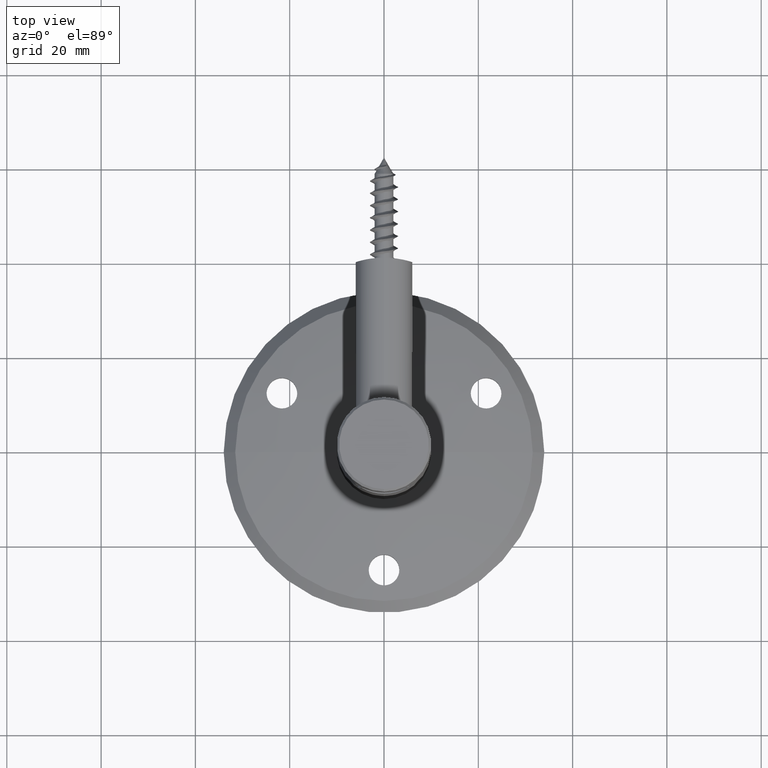
[diagram: clean part render]
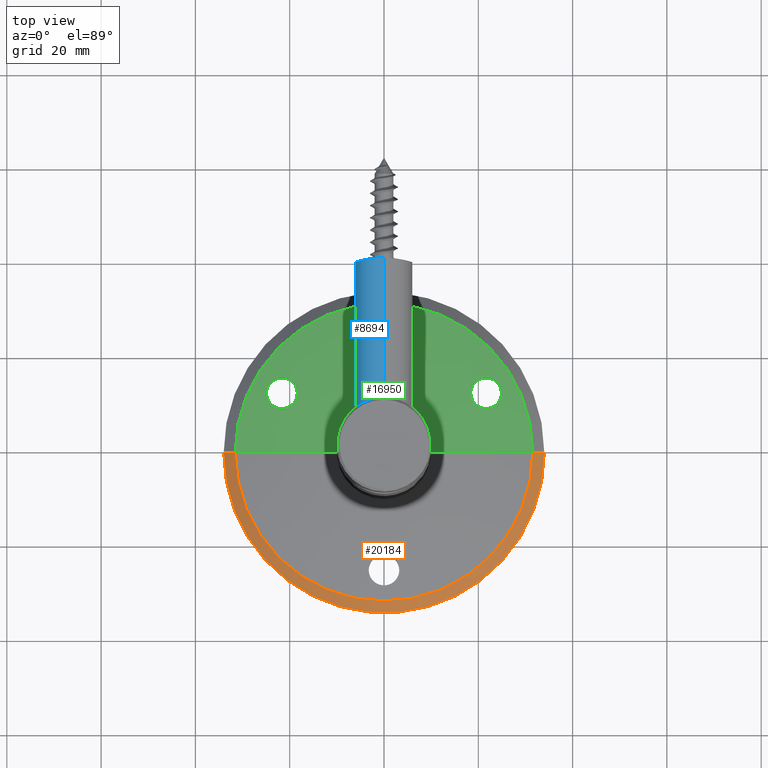
[diagram: same view with three faces highlighted in distinct colors, each labeled with its STEP entity id]
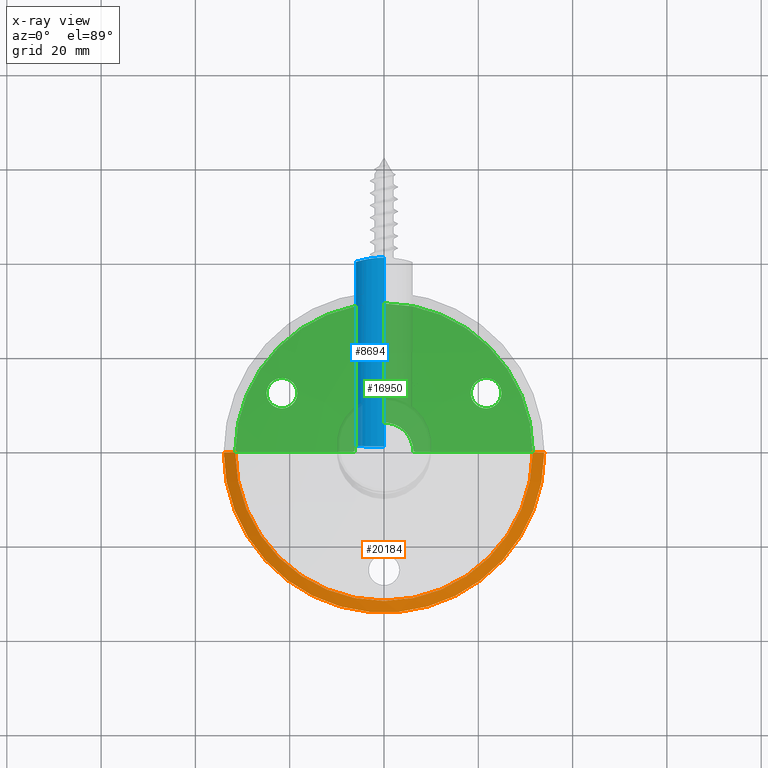
[diagram: x-ray of the same camera — body ghosted, the three highlighted faces saturated]
A machine part, top view with three faces highlighted in distinct colors.
The next image is the same camera in x-ray (body ghosted, the three faces saturated) — at least one of them is partly hidden behind the body in this view.
Their STEP definitions:

[orange] entity #20184 — the highlighted conical surface has half-angle 44.713 deg.
#492 = DIRECTION ( 'NONE',  ( -1.000000000000000000, 0.000000000000000000, 0.000000000000000000 ) ) ;
#2248 = DIRECTION ( 'NONE',  ( -1.873600393855974325E-19, 1.000000000000000000, -0.000000000000000000 ) ) ;
#2370 = VERTEX_POINT ( 'NONE', #25033 ) ;
#3230 = EDGE_LOOP ( 'NONE', ( #19136, #8001, #25710, #14365 ) ) ;
#3300 = DIRECTION ( 'NONE',  ( -0.7035575773262883192, -0.7106382591633831902, 8.616095350885053837E-17 ) ) ;
#3693 = CARTESIAN_POINT ( 'NONE',  ( 31.55000000000005045, 1.323225072109828426, 0.000000000000000000 ) ) ;
#4082 = DIRECTION ( 'NONE',  ( 1.873600393855974325E-19, -1.000000000000000000, 0.000000000000000000 ) ) ;
#4614 = EDGE_CURVE ( 'NONE', #11810, #5712, #24843, .T. ) ;
#5712 = VERTEX_POINT ( 'NONE', #6509 ) ;
#6390 = AXIS2_PLACEMENT_3D ( 'NONE', #24197, #4082, #13332 ) ;
#6509 = CARTESIAN_POINT ( 'NONE',  ( 34.00000000000002842, -1.151432000829118785, 4.163799117101004504E-15 ) ) ;
#7300 = DIRECTION ( 'NONE',  ( -1.873600393855974325E-19, 1.000000000000000000, -0.000000000000000000 ) ) ;
#7610 = CARTESIAN_POINT ( 'NONE',  ( -31.55000000000002203, 1.323225072109828426, -3.863760651309905284E-15 ) ) ;
#8001 = ORIENTED_EDGE ( 'NONE', *, *, #24510, .T. ) ;
#8343 = EDGE_CURVE ( 'NONE', #2370, #5712, #21969, .T. ) ;
#9549 = CARTESIAN_POINT ( 'NONE',  ( -2.479195016265073111E-19, 1.323225072109827538, 0.000000000000000000 ) ) ;
#9675 = AXIS2_PLACEMENT_3D ( 'NONE', #9549, #7300, #492 ) ;
#10636 = AXIS2_PLACEMENT_3D ( 'NONE', #18158, #2248, #22563 ) ;
#11081 = FACE_OUTER_BOUND ( 'NONE', #3230, .T. ) ;
#11810 = VERTEX_POINT ( 'NONE', #3693 ) ;
#11869 = VECTOR ( 'NONE', #28020, 1000.000000000000000 ) ;
#12439 = CARTESIAN_POINT ( 'NONE',  ( -34.00000000000002842, -1.151432000829118785, 4.163799117101004504E-15 ) ) ;
#12742 = VECTOR ( 'NONE', #3300, 1000.000000000000000 ) ;
#13332 = DIRECTION ( 'NONE',  ( 1.000000000000000000, 0.000000000000000000, 0.000000000000000000 ) ) ;
#14365 = ORIENTED_EDGE ( 'NONE', *, *, #4614, .F. ) ;
#18106 = CONICAL_SURFACE ( 'NONE', #6390, 34.00000000000002842, 0.7803913443363523772 ) ;
#18158 = CARTESIAN_POINT ( 'NONE',  ( 2.157323450251809556E-19, -1.151432000829118785, 0.000000000000000000 ) ) ;
#18734 = LINE ( 'NONE', #12439, #12742 ) ;
#19134 = CARTESIAN_POINT ( 'NONE',  ( 34.00000000000002842, -1.151432000829118785, 0.000000000000000000 ) ) ;
#19136 = ORIENTED_EDGE ( 'NONE', *, *, #23746, .F. ) ;
#20184 = ADVANCED_FACE ( 'NONE', ( #11081 ), #18106, .T. ) ;
#20458 = VERTEX_POINT ( 'NONE', #7610 ) ;
#21969 = CIRCLE ( 'NONE', #10636, 34.00000000000002842 ) ;
#22563 = DIRECTION ( 'NONE',  ( -1.000000000000000000, 0.000000000000000000, 0.000000000000000000 ) ) ;
#23746 = EDGE_CURVE ( 'NONE', #20458, #11810, #25729, .T. ) ;
#24197 = CARTESIAN_POINT ( 'NONE',  ( 2.157323450251809556E-19, -1.151432000829118785, 0.000000000000000000 ) ) ;
#24510 = EDGE_CURVE ( 'NONE', #20458, #2370, #18734, .T. ) ;
#24843 = LINE ( 'NONE', #19134, #11869 ) ;
#25033 = CARTESIAN_POINT ( 'NONE',  ( -34.00000000000002842, -1.151432000829118785, 0.000000000000000000 ) ) ;
#25710 = ORIENTED_EDGE ( 'NONE', *, *, #8343, .T. ) ;
#25729 = CIRCLE ( 'NONE', #9675, 31.55000000000002913 ) ;
#28020 = DIRECTION ( 'NONE',  ( 0.7035575773262883192, -0.7106382591633831902, 0.000000000000000000 ) ) ;

[blue] entity #8694 — the highlighted cylindrical surface (edge-blend (fillet) strip) has radius 6 mm, axis along (-0, -1, -0).
#500 = CARTESIAN_POINT ( 'NONE',  ( 0.000000000000000000, 0.000000000000000000, 0.000000000000000000 ) ) ;
#546 = CARTESIAN_POINT ( 'NONE',  ( -3.964276376799458212, 39.48570432169955780, 4.520804803982510833 ) ) ;
#651 = CARTESIAN_POINT ( 'NONE',  ( -5.950782786971636540, 39.01388517066094863, 0.7920059584994796342 ) ) ;
#747 = CARTESIAN_POINT ( 'NONE',  ( -5.807638100490195576, 39.05376611899017547, -1.557673210457313440 ) ) ;
#940 = CARTESIAN_POINT ( 'NONE',  ( -5.206236184183812732, 39.21191835892614819, -3.008410149858220084 ) ) ;
#1627 = DIRECTION ( 'NONE',  ( 0.000000000000000000, 0.000000000000000000, -1.000000000000000000 ) ) ;
#2827 = CARTESIAN_POINT ( 'NONE',  ( -3.659761668993716910, 39.54057707642264319, -4.758622854168131688 ) ) ;
#2920 = CARTESIAN_POINT ( 'NONE',  ( -4.877444316915770628, 39.29023204928930113, 3.499777847767239436 ) ) ;
#3014 = VERTEX_POINT ( 'NONE', #5340 ) ;
#3106 = CARTESIAN_POINT ( 'NONE',  ( -5.806108110380638010, 39.05418668130603521, 1.562930708838027094 ) ) ;
#3201 = CARTESIAN_POINT ( 'NONE',  ( -0.7857620104761188218, 39.85531621128593827, 5.961577234803183245 ) ) ;
#3761 = EDGE_CURVE ( 'NONE', #3014, #14916, #7322, .T. ) ;
#5140 = EDGE_LOOP ( 'NONE', ( #27850, #23024, #19605, #22399 ) ) ;
#5185 = CARTESIAN_POINT ( 'NONE',  ( -3.663581196725830047, 39.54185171160022350, 4.767704155232880936 ) ) ;
#5287 = CARTESIAN_POINT ( 'NONE',  ( -5.387574997671332966, 39.16563756549380315, 2.670399795066904058 ) ) ;
#5340 = CARTESIAN_POINT ( 'NONE',  ( 0.000000000000000000, 0.000000000000000000, -6.000000000000000888 ) ) ;
#5431 = CARTESIAN_POINT ( 'NONE',  ( 7.347880794884120722E-16, 0.000000000000000000, 6.000000000000000888 ) ) ;
#5476 = CARTESIAN_POINT ( 'NONE',  ( -3.500786555539173950, 39.56823632701032523, -4.876773007445482477 ) ) ;
#5519 = B_SPLINE_CURVE_WITH_KNOTS ( 'NONE', 3,
 ( #18740, #25574, #3201, #27431, #27718, #7649, #27624, #5185, #546, #21141, #7357, #9898, #2920, #23042, #5287, #12136, #3106, #9801, #651, #16383, #12040, #14036, #14226, #747, #27815, #14429, #940, #20865, #7454, #16672, #18931, #2827, #5476, #18547, #23147, #25185, #11749, #25379, #7746, #16487 ),
 .UNSPECIFIED., .F., .F.,
 ( 4, 2, 2, 2, 2, 2, 2, 2, 2, 2, 2, 2, 2, 2, 2, 2, 2, 2, 2, 4 ),
 ( 0.01885530596887355012, 0.02003343805342193765, 0.02121157013797032517, 0.02238970222251870923, 0.02356783430706709676, 0.02415690034934129052, 0.02474596639161548081, 0.02592409847616387181, 0.02710223056071225933, 0.02769129660298644963, 0.02828036264526064686, 0.02945849472980903092, 0.03063662681435741844, 0.03181475889890580250, 0.03299289098345419002, 0.03358195702572838032, 0.03417102306800257061, 0.03534915515255095120, 0.03652728723709933178, 0.03770541932164770543 ),
 .UNSPECIFIED. ) ;
#6065 = CARTESIAN_POINT ( 'NONE',  ( 0.000000000000000000, 40.00000000000000000, 0.000000000000000000 ) ) ;
#6254 = DIRECTION ( 'NONE',  ( -0.000000000000000000, -1.000000000000000000, -0.000000000000000000 ) ) ;
#7205 = DIRECTION ( 'NONE',  ( 0.000000000000000000, 1.000000000000000000, 0.000000000000000000 ) ) ;
#7322 = CIRCLE ( 'NONE', #17584, 6.000000000000000888 ) ;
#7357 = CARTESIAN_POINT ( 'NONE',  ( -4.512491946779505270, 39.37242490906735526, 3.959268904647315512 ) ) ;
#7454 = CARTESIAN_POINT ( 'NONE',  ( -4.519030231717185764, 39.37239402637399621, -3.966069421012515583 ) ) ;
#7649 = CARTESIAN_POINT ( 'NONE',  ( -2.662935658242311376, 39.69628743181432640, 5.390914844807952022 ) ) ;
#7746 = CARTESIAN_POINT ( 'NONE',  ( -0.3985343531787722271, 39.86677595657786810, -6.000000000000001776 ) ) ;
#8694 = ADVANCED_FACE ( 'NONE', ( #18116 ), #16015, .T. ) ;
#9151 = LINE ( 'NONE', #14993, #25978 ) ;
#9337 = CARTESIAN_POINT ( 'NONE',  ( 7.347880794884120722E-16, 40.00000000000000000, 6.000000000000000888 ) ) ;
#9704 = AXIS2_PLACEMENT_3D ( 'NONE', #6065, #6254, #1627 ) ;
#9801 = CARTESIAN_POINT ( 'NONE',  ( -5.921602644399784232, 39.02208673504235747, 0.9864243860285004661 ) ) ;
#9898 = CARTESIAN_POINT ( 'NONE',  ( -4.761199180085127658, 39.31712859228571944, 3.656415758172712138 ) ) ;
#10640 = DIRECTION ( 'NONE',  ( -0.000000000000000000, -1.000000000000000000, -0.000000000000000000 ) ) ;
#10892 = VECTOR ( 'NONE', #11577, 1000.000000000000000 ) ;
#11211 = CARTESIAN_POINT ( 'NONE',  ( 7.348785364234270165E-16, 39.86677595657787521, 6.000000000000000888 ) ) ;
#11577 = DIRECTION ( 'NONE',  ( -0.000000000000000000, -1.000000000000000000, -0.000000000000000000 ) ) ;
#11749 = CARTESIAN_POINT ( 'NONE',  ( -1.563029231404520214, 39.81043210133497467, -5.806202220854063789 ) ) ;
#12040 = CARTESIAN_POINT ( 'NONE',  ( -5.999970890992127437, 39.00000823839837949, 0.1986379970142011508 ) ) ;
#12136 = CARTESIAN_POINT ( 'NONE',  ( -5.691954975217570656, 39.08562598345534411, 1.938723286372394883 ) ) ;
#13450 = EDGE_CURVE ( 'NONE', #15304, #15050, #5519, .T. ) ;
#14036 = CARTESIAN_POINT ( 'NONE',  ( -6.000058023881838842, 38.99998357814681782, -0.3946323561158853188 ) ) ;
#14226 = CARTESIAN_POINT ( 'NONE',  ( -5.961386802456495992, 39.01102457284437719, -0.7854129667501479339 ) ) ;
#14429 = CARTESIAN_POINT ( 'NONE',  ( -5.390535398939861444, 39.16486600748005031, -2.663726017055905171 ) ) ;
#14916 = VERTEX_POINT ( 'NONE', #5431 ) ;
#14993 = CARTESIAN_POINT ( 'NONE',  ( 0.000000000000000000, 40.00000000000000000, -6.000000000000000888 ) ) ;
#15050 = VERTEX_POINT ( 'NONE', #26291 ) ;
#15304 = VERTEX_POINT ( 'NONE', #11211 ) ;
#16015 = CYLINDRICAL_SURFACE ( 'NONE', #9704, 6.000000000000000888 ) ;
#16383 = CARTESIAN_POINT ( 'NONE',  ( -5.990013146693849322, 39.00283265901343555, 0.3985369725024903165 ) ) ;
#16487 = CARTESIAN_POINT ( 'NONE',  ( 4.282583449921128537E-16, 39.86677595657787521, -6.000000000000000888 ) ) ;
#16672 = CARTESIAN_POINT ( 'NONE',  ( -4.106542281007299344, 39.45667399872763781, -4.378829263189588872 ) ) ;
#17584 = AXIS2_PLACEMENT_3D ( 'NONE', #500, #7205, #27572 ) ;
#18116 = FACE_OUTER_BOUND ( 'NONE', #5140, .T. ) ;
#18547 = CARTESIAN_POINT ( 'NONE',  ( -3.012141485592890966, 39.64739288236551573, -5.203910987434446689 ) ) ;
#18740 = CARTESIAN_POINT ( 'NONE',  ( 7.348785364234270165E-16, 39.86677595657787521, 6.000000000000000888 ) ) ;
#18931 = CARTESIAN_POINT ( 'NONE',  ( -3.962259874287239025, 39.48485087254294257, -4.509860710782562343 ) ) ;
#19605 = ORIENTED_EDGE ( 'NONE', *, *, #27934, .T. ) ;
#20865 = CARTESIAN_POINT ( 'NONE',  ( -4.767826730278489578, 39.31634975640431406, -3.663776071939537360 ) ) ;
#21141 = CARTESIAN_POINT ( 'NONE',  ( -4.379526882826519696, 39.40091599897961316, 4.105853760113749473 ) ) ;
#22399 = ORIENTED_EDGE ( 'NONE', *, *, #3761, .T. ) ;
#23024 = ORIENTED_EDGE ( 'NONE', *, *, #13450, .T. ) ;
#23042 = CARTESIAN_POINT ( 'NONE',  ( -5.202397460826470699, 39.21284511678085494, 3.014414180720894176 ) ) ;
#23147 = CARTESIAN_POINT ( 'NONE',  ( -2.668671955346761937, 39.69554027743483005, -5.388084655582786375 ) ) ;
#25185 = CARTESIAN_POINT ( 'NONE',  ( -1.945894607542806742, 39.77703341008690074, -5.689179241095924766 ) ) ;
#25379 = CARTESIAN_POINT ( 'NONE',  ( -0.7908140422925846735, 39.85505454503419287, -5.960675948094186438 ) ) ;
#25574 = CARTESIAN_POINT ( 'NONE',  ( -0.3927368600506273011, 39.86677595657788231, 6.000000000000001776 ) ) ;
#25949 = LINE ( 'NONE', #9337, #10892 ) ;
#25978 = VECTOR ( 'NONE', #10640, 1000.000000000000000 ) ;
#26291 = CARTESIAN_POINT ( 'NONE',  ( 4.282583449921128537E-16, 39.86677595657787521, -6.000000000000000888 ) ) ;
#27431 = CARTESIAN_POINT ( 'NONE',  ( -1.564912541669909674, 39.81035341677710448, 5.805934360682633688 ) ) ;
#27572 = DIRECTION ( 'NONE',  ( 0.000000000000000000, 0.000000000000000000, 1.000000000000000000 ) ) ;
#27624 = CARTESIAN_POINT ( 'NONE',  ( -3.013945904030062906, 39.64711374446569181, 5.202783887920806372 ) ) ;
#27718 = CARTESIAN_POINT ( 'NONE',  ( -1.940025159554571665, 39.77759317860548549, 5.691176641451610507 ) ) ;
#27815 = CARTESIAN_POINT ( 'NONE',  ( -5.691000992974683648, 39.08587007480336695, -1.940571018830644423 ) ) ;
#27850 = ORIENTED_EDGE ( 'NONE', *, *, #28905, .F. ) ;
#27934 = EDGE_CURVE ( 'NONE', #15050, #3014, #9151, .T. ) ;
#28905 = EDGE_CURVE ( 'NONE', #15304, #14916, #25949, .T. ) ;

[green] entity #16950 — the highlighted spherical surface has radius 137.202 mm.
#44 = CIRCLE ( 'NONE', #20235, 6.249999999999849898 ) ;
#55 = CARTESIAN_POINT ( 'NONE',  ( 18.42130358774675258, 3.220613773560843107, -12.07504099205186421 ) ) ;
#162 = CARTESIAN_POINT ( 'NONE',  ( -19.68674065705360832, 3.218910011225227574, -9.901703773210174475 ) ) ;
#326 = CARTESIAN_POINT ( 'NONE',  ( 19.68678848478469234, 3.218904070390783634, -9.901685266453631229 ) ) ;
#440 = CARTESIAN_POINT ( 'NONE',  ( -19.66187133969511081, 2.744165668034393768, -15.07903309589202223 ) ) ;
#482 = CARTESIAN_POINT ( 'NONE',  ( 24.56752579193426556, 2.060011947045868208, -13.94931790273381544 ) ) ;
#582 = CARTESIAN_POINT ( 'NONE',  ( 24.08846648249511091, 2.071091219748712575, -14.66006953737124618 ) ) ;
#775 = CARTESIAN_POINT ( 'NONE',  ( 21.20630468683646441, 2.434163380145796030, -15.74696489451178572 ) ) ;
#823 = CARTESIAN_POINT ( 'NONE',  ( -23.62795496054672739, 2.102967424068519442, -15.11526273863914405 ) ) ;
#1085 = EDGE_CURVE ( 'NONE', #6973, #2155, #17266, .T. ) ;
#1778 = AXIS2_PLACEMENT_3D ( 'NONE', #27768, #10141, #5336 ) ;
#1933 = CARTESIAN_POINT ( 'NONE',  ( -24.90063509461093716, 2.141205001286026199, -12.49999999999999289 ) ) ;
#2155 = VERTEX_POINT ( 'NONE', #10743 ) ;
#2213 = CARTESIAN_POINT ( 'NONE',  ( 23.64052137450945423, 2.583459584088036554, -9.921709560958717589 ) ) ;
#2235 = CARTESIAN_POINT ( 'NONE',  ( -24.57192641662134491, 2.328026766935543446, -11.06012530453716280 ) ) ;
#2312 = CARTESIAN_POINT ( 'NONE',  ( 18.40063509461100111, 3.184687488071022532, -12.50000000000000888 ) ) ;
#2433 = CARTESIAN_POINT ( 'NONE',  ( -21.24966479377535578, 3.027404161120517134, -9.267905812885500083 ) ) ;
#2547 = CIRCLE ( 'NONE', #24593, 137.2019220182881440 ) ;
#2592 = CARTESIAN_POINT ( 'NONE',  ( 24.90063509461100111, 2.161032941992547141, -12.28690019545040890 ) ) ;
#2636 = CARTESIAN_POINT ( 'NONE',  ( -18.40063509461093005, 3.184687488071056727, -12.49999999999999822 ) ) ;
#2705 = CARTESIAN_POINT ( 'NONE',  ( -22.46584614086420117, 2.240160594145616635, -15.65330219786562438 ) ) ;
#2758 = CARTESIAN_POINT ( 'NONE',  ( 24.79524798743407388, 2.079251724942865920, -13.34822851572565838 ) ) ;
#2811 = CARTESIAN_POINT ( 'NONE',  ( -24.46438077859136584, 2.058854433994938837, -14.14040230117570474 ) ) ;
#2906 = CARTESIAN_POINT ( 'NONE',  ( -24.79515248673736494, 2.079222603710677131, -13.34870679242762215 ) ) ;
#2950 = CARTESIAN_POINT ( 'NONE',  ( 22.05240838295251393, 2.299402638675524191, -15.73208695246785993 ) ) ;
#3004 = CARTESIAN_POINT ( 'NONE',  ( -18.83113655395683139, 2.965163677498570127, -14.13011756481651204 ) ) ;
#3042 = CARTESIAN_POINT ( 'NONE',  ( 23.06808943147917645, 2.163696764786613436, -15.43233655172149810 ) ) ;
#3083 = DIRECTION ( 'NONE',  ( 1.000000000000000000, 0.000000000000000000, 0.000000000000000000 ) ) ;
#3090 = CARTESIAN_POINT ( 'NONE',  ( -24.90063509461095137, 2.121408997394307328, -12.71275656522473341 ) ) ;
#3139 = CARTESIAN_POINT ( 'NONE',  ( 24.73309989053668900, 2.070281293100495468, -13.55222835220999400 ) ) ;
#3693 = CARTESIAN_POINT ( 'NONE',  ( 31.55000000000005045, 1.323225072109828426, 0.000000000000000000 ) ) ;
#3921 = EDGE_LOOP ( 'NONE', ( #5993, #19917 ) ) ;
#4130 = DIRECTION ( 'NONE',  ( -1.000000000000000000, 0.000000000000000000, 0.000000000000000000 ) ) ;
#4484 = CARTESIAN_POINT ( 'NONE',  ( -18.40063509461093005, 3.184687488071056727, -12.49999999999999822 ) ) ;
#4622 = B_SPLINE_CURVE_WITH_KNOTS ( 'NONE', 3,
 ( #2312, #11252, #55, #11615, #22819, #24955, #22619, #20445, #20262, #22722, #326, #9373, #18121, #24866, #6837, #25050, #27016, #27299, #11527, #27110, #16066, #15698, #13709, #2213, #7029, #9004, #18227, #13611, #4659, #22525, #2592, #7124 ),
 .UNSPECIFIED., .F., .F.,
 ( 4, 2, 2, 2, 2, 2, 2, 2, 2, 2, 2, 2, 2, 2, 2, 4 ),
 ( 0.002674754707660566538, 0.003315336928196353436, 0.003955919148732139901, 0.004596501369267926365, 0.005237083589803713697, 0.005877665810339500162, 0.006518248030875287494, 0.007158830251411073958, 0.007799412471946860423, 0.008439994692482646887, 0.009080576913018433352, 0.009721159133554221551, 0.01036174135409000802, 0.01164290579516157748, 0.01228348801569736047, 0.01292407023623314347 ),
 .UNSPECIFIED. ) ;
#4659 = CARTESIAN_POINT ( 'NONE',  ( 24.79659854990288537, 2.236397164296403783, -11.65678851343565192 ) ) ;
#4681 = CARTESIAN_POINT ( 'NONE',  ( -18.40063509461093361, 3.204365516194339847, -12.28686867924922232 ) ) ;
#4966 = CARTESIAN_POINT ( 'NONE',  ( -22.67206716336210093, 2.212591729818495168, -15.59258729427728696 ) ) ;
#5017 = CARTESIAN_POINT ( 'NONE',  ( 18.42188647295795434, 3.141781288821329454, -12.92785887088139596 ) ) ;
#5071 = CARTESIAN_POINT ( 'NONE',  ( -19.49946751269711953, 2.782590263768787153, -14.94544333274493475 ) ) ;
#5220 = CARTESIAN_POINT ( 'NONE',  ( 20.00753297968704558, 2.664960523333355535, -15.33533113202369513 ) ) ;
#5277 = VERTEX_POINT ( 'NONE', #9179 ) ;
#5315 = CARTESIAN_POINT ( 'NONE',  ( 19.64658146472042333, 2.745300213471416839, -15.09343697874318302 ) ) ;
#5336 = DIRECTION ( 'NONE',  ( -1.000000000000000000, 0.000000000000000000, -1.224646799147353207E-16 ) ) ;
#5575 = DIRECTION ( 'NONE',  ( 0.000000000000000000, 0.000000000000000000, 1.000000000000000000 ) ) ;
#5577 = EDGE_CURVE ( 'NONE', #20458, #15756, #25541, .T. ) ;
#5747 = EDGE_CURVE ( 'NONE', #11810, #20458, #12550, .T. ) ;
#5993 = ORIENTED_EDGE ( 'NONE', *, *, #1085, .F. ) ;
#6072 = EDGE_LOOP ( 'NONE', ( #6404, #17427, #6267, #17259 ) ) ;
#6267 = ORIENTED_EDGE ( 'NONE', *, *, #27432, .F. ) ;
#6404 = ORIENTED_EDGE ( 'NONE', *, *, #5747, .T. ) ;
#6666 = CARTESIAN_POINT ( 'NONE',  ( -21.46035830181032367, 2.995459029642072224, -9.248538902208535362 ) ) ;
#6837 = CARTESIAN_POINT ( 'NONE',  ( 20.83437806431916073, 3.086562758790535543, -9.347065408173568457 ) ) ;
#6853 = CARTESIAN_POINT ( 'NONE',  ( -18.40063509461093361, 3.165023080334445016, -12.71298379931260669 ) ) ;
#6973 = VERTEX_POINT ( 'NONE', #9556 ) ;
#7029 = CARTESIAN_POINT ( 'NONE',  ( 23.80523129255123393, 2.544376125982338532, -10.05778832055524674 ) ) ;
#7124 = CARTESIAN_POINT ( 'NONE',  ( 24.90063509461099756, 2.141205001286021758, -12.50000000000000711 ) ) ;
#7239 = CARTESIAN_POINT ( 'NONE',  ( -24.08913364948105951, 2.071047275627936113, -14.65938603750719338 ) ) ;
#7281 = B_SPLINE_CURVE_WITH_KNOTS ( 'NONE', 3,
 ( #9386, #6853, #7341, #9783, #22937, #16174, #3004, #18727, #23031, #5071, #440, #9492, #13915, #11735, #27313, #11835, #16469, #27415, #23312, #2705, #4966, #9687, #823, #7239, #9589, #2811, #20850, #27513, #2906, #14020, #3090, #11933 ),
 .UNSPECIFIED., .F., .F.,
 ( 4, 2, 2, 2, 2, 2, 2, 2, 2, 2, 2, 2, 2, 2, 2, 4 ),
 ( 0.01280076503477827789, 0.01344107767929983953, 0.01408139032382140290, 0.01472170296834296455, 0.01536201561286452792, 0.01600232825738609130, 0.01664264090190765294, 0.01728295354642921458, 0.01792326619095077622, 0.01856357883547234133, 0.01920389147999390297, 0.02048451676903702973, 0.02112482941355859484, 0.02176514205808015648, 0.02240545470260171812, 0.02304576734712328323 ),
 .UNSPECIFIED. ) ;
#7341 = CARTESIAN_POINT ( 'NONE',  ( -18.42205885368258933, 3.141658454481170093, -12.92889015947616471 ) ) ;
#7388 = CARTESIAN_POINT ( 'NONE',  ( 21.83862506368915035, 2.332017626427016932, -15.75139776186985152 ) ) ;
#7485 = CARTESIAN_POINT ( 'NONE',  ( 23.26031033781880453, 2.142110865524465169, -15.33140269317970983 ) ) ;
#7583 = CARTESIAN_POINT ( 'NONE',  ( 19.19800545756231003, 2.858937687910312775, -14.64289977414203037 ) ) ;
#7610 = CARTESIAN_POINT ( 'NONE',  ( -31.55000000000002203, 1.323225072109828426, -3.863760651309905284E-15 ) ) ;
#8926 = CARTESIAN_POINT ( 'NONE',  ( -20.83425279380761452, 3.086578895153181623, -9.347107684130872229 ) ) ;
#9004 = CARTESIAN_POINT ( 'NONE',  ( 24.25018901483302614, 2.431399066450202096, -10.50461781369131664 ) ) ;
#9027 = CARTESIAN_POINT ( 'NONE',  ( -20.23140713941404201, 3.162580020688157578, -9.568458194313562259 ) ) ;
#9119 = CARTESIAN_POINT ( 'NONE',  ( -20.04329314670211204, 3.183542244344759631, -9.667249303854726250 ) ) ;
#9179 = CARTESIAN_POINT ( 'NONE',  ( -24.90063509461093716, 2.141205001286026199, -12.49999999999999289 ) ) ;
#9302 = CARTESIAN_POINT ( 'NONE',  ( -23.80397246905034336, 2.544686321053911460, -10.05662519552145540 ) ) ;
#9373 = CARTESIAN_POINT ( 'NONE',  ( 20.04296988211132202, 3.183575505860270827, -9.667448936734100329 ) ) ;
#9386 = CARTESIAN_POINT ( 'NONE',  ( -18.40063509461093005, 3.184687488071056727, -12.49999999999999822 ) ) ;
#9492 = CARTESIAN_POINT ( 'NONE',  ( -20.01028492841126294, 2.666524560421610346, -15.31351102980279322 ) ) ;
#9556 = CARTESIAN_POINT ( 'NONE',  ( 24.90063509461099756, 2.141205001286021758, -12.50000000000000711 ) ) ;
#9589 = CARTESIAN_POINT ( 'NONE',  ( -24.22559588141354325, 2.064401577700413437, -14.49440753865651565 ) ) ;
#9633 = CARTESIAN_POINT ( 'NONE',  ( 18.72902684991187172, 2.999160907536962295, -13.93929576982487717 ) ) ;
#9687 = CARTESIAN_POINT ( 'NONE',  ( -23.26156005881909294, 2.139785407298298026, -15.35431241017612614 ) ) ;
#9734 = CARTESIAN_POINT ( 'NONE',  ( 24.90063509461100821, 2.121391305322573473, -12.71294670988385533 ) ) ;
#9783 = CARTESIAN_POINT ( 'NONE',  ( -18.50538748378034981, 3.089830719161699157, -13.34561739513034873 ) ) ;
#10141 = DIRECTION ( 'NONE',  ( 1.224646799147353207E-16, 2.294498725216939218E-35, -1.000000000000000000 ) ) ;
#10743 = CARTESIAN_POINT ( 'NONE',  ( 18.40063509461100111, 3.184687488071022532, -12.50000000000000888 ) ) ;
#11068 = CARTESIAN_POINT ( 'NONE',  ( -19.51732184079173038, 3.233333220518514572, -10.03887304459666652 ) ) ;
#11174 = CARTESIAN_POINT ( 'NONE',  ( -23.28898263613868380, 2.661830314097846539, -9.685287936340222004 ) ) ;
#11252 = CARTESIAN_POINT ( 'NONE',  ( 18.40063509461100111, 3.204324108505656632, -12.28731716297562393 ) ) ;
#11432 = EDGE_LOOP ( 'NONE', ( #22931, #21216 ) ) ;
#11527 = CARTESIAN_POINT ( 'NONE',  ( 22.09826794487404200, 2.890902955020616449, -9.274073901560210942 ) ) ;
#11615 = CARTESIAN_POINT ( 'NONE',  ( 18.50596478907113251, 3.246185179836198031, -11.65134175952970352 ) ) ;
#11735 = CARTESIAN_POINT ( 'NONE',  ( -20.58772126900224109, 2.549215436640195787, -15.57851547467623199 ) ) ;
#11810 = VERTEX_POINT ( 'NONE', #3693 ) ;
#11835 = CARTESIAN_POINT ( 'NONE',  ( -21.20127086729368315, 2.436936741607419243, -15.72568155669498324 ) ) ;
#11933 = CARTESIAN_POINT ( 'NONE',  ( -24.90063509461093716, 2.141205001286026199, -12.49999999999999289 ) ) ;
#12550 = CIRCLE ( 'NONE', #25291, 31.55000000000002913 ) ;
#12712 = CARTESIAN_POINT ( 'NONE',  ( 3.232237634562468506E-14, -132.2019220182881725, 0.000000000000000000 ) ) ;
#13152 = CARTESIAN_POINT ( 'NONE',  ( 6.249999999999849898, 4.857572018106197653, 0.000000000000000000 ) ) ;
#13225 = CARTESIAN_POINT ( 'NONE',  ( -24.87991786159579277, 2.184048315673503549, -12.07538122676634984 ) ) ;
#13336 = CARTESIAN_POINT ( 'NONE',  ( -18.42139489580548783, 3.220628124129609304, -12.07472733035788970 ) ) ;
#13611 = CARTESIAN_POINT ( 'NONE',  ( 24.73390321689298332, 2.265633294258804664, -11.45092072255848770 ) ) ;
#13621 = EDGE_CURVE ( 'NONE', #11810, #24156, #2547, .T. ) ;
#13631 = CARTESIAN_POINT ( 'NONE',  ( -22.09787127270784524, 2.890968009189119226, -9.274057570420149332 ) ) ;
#13709 = CARTESIAN_POINT ( 'NONE',  ( 23.28959211237146576, 2.661706920699579815, -9.685564197052364932 ) ) ;
#13915 = CARTESIAN_POINT ( 'NONE',  ( -20.19849393735744414, 2.626881412110841918, -15.41518942573234163 ) ) ;
#14020 = CARTESIAN_POINT ( 'NONE',  ( -24.87928644923139743, 2.104717984558059474, -12.92907258034727747 ) ) ;
#14358 = CARTESIAN_POINT ( 'NONE',  ( 18.40063509461099756, 3.165064974931601771, -12.71253004191548719 ) ) ;
#14831 = B_SPLINE_CURVE_WITH_KNOTS ( 'NONE', 3,
 ( #1933, #15225, #13225, #27035, #22746, #2235, #15902, #24883, #18049, #9302, #22348, #11174, #26947, #18147, #26744, #13631, #22450, #6666, #2433, #8926, #24590, #9027, #9119, #162, #11068, #24689, #26842, #17955, #20092, #24791, #29008, #13336, #4681, #4484 ),
 .UNSPECIFIED., .F., .F.,
 ( 4, 2, 2, 2, 2, 2, 2, 2, 2, 2, 2, 2, 2, 2, 2, 2, 4 ),
 ( 0.002548666607705022367, 0.003189422759397100675, 0.003830178911089179416, 0.004470935062781258157, 0.005111691214473336464, 0.005752447366165414772, 0.006393203517857493079, 0.007033959669549572254, 0.007674715821241650561, 0.008315471972933728001, 0.008956228124625806308, 0.009596984276317886350, 0.01023774042800996466, 0.01087849657970204470, 0.01151925273139412301, 0.01216000888308620131, 0.01280076503477827962 ),
 .UNSPECIFIED. ) ;
#15225 = CARTESIAN_POINT ( 'NONE',  ( -24.90063509461093005, 2.161014716713486550, -12.28709607072887344 ) ) ;
#15367 = CARTESIAN_POINT ( 'NONE',  ( -2.479195016265073111E-19, 1.323225072109827538, 0.000000000000000000 ) ) ;
#15698 = CARTESIAN_POINT ( 'NONE',  ( 23.10475451143748771, 2.700618226045541359, -9.585832849305971237 ) ) ;
#15756 = VERTEX_POINT ( 'NONE', #15959 ) ;
#15902 = CARTESIAN_POINT ( 'NONE',  ( -24.47081202718524295, 2.361882803260258346, -10.87085373060151561 ) ) ;
#15959 = CARTESIAN_POINT ( 'NONE',  ( -6.249999999999849898, 4.857572018106197653, -2.314582450388493275E-15 ) ) ;
#16066 = CARTESIAN_POINT ( 'NONE',  ( 22.71658157655665278, 2.778022352540871154, -9.422567375521662569 ) ) ;
#16174 = CARTESIAN_POINT ( 'NONE',  ( -18.72994263244545010, 2.998828895293834673, -13.94130104551567229 ) ) ;
#16469 = CARTESIAN_POINT ( 'NONE',  ( -21.41512424985984353, 2.400440913634828366, -15.74831518860368362 ) ) ;
#16950 = ADVANCED_FACE ( 'NONE', ( #17249, #27393, #28439 ), #26329, .T. ) ;
#17249 = FACE_BOUND ( 'NONE', #3921, .T. ) ;
#17259 = ORIENTED_EDGE ( 'NONE', *, *, #13621, .F. ) ;
#17266 = B_SPLINE_CURVE_WITH_KNOTS ( 'NONE', 3,
 ( #27751, #9734, #18680, #2758, #3139, #482, #18480, #27462, #582, #25409, #27655, #7485, #3042, #18583, #20896, #2950, #7388, #775, #18771, #5220, #5315, #7583, #20806, #23077, #9633, #23263, #25505, #5017, #14358, #21090 ),
 .UNSPECIFIED., .F., .F.,
 ( 4, 2, 2, 2, 2, 2, 2, 2, 2, 2, 2, 2, 2, 2, 4 ),
 ( 0.01292407023623314347, 0.01356419225118052352, 0.01420431426612790184, 0.01484443628107528189, 0.01548455829602266194, 0.01612468031097004026, 0.01676480232591742031, 0.01740492434086480036, 0.01804504635581218042, 0.01932529038570694052, 0.02060553441560169716, 0.02124565643054907374, 0.02188577844549645379, 0.02252590046044383038, 0.02316602247539120696 ),
 .UNSPECIFIED. ) ;
#17427 = ORIENTED_EDGE ( 'NONE', *, *, #5577, .T. ) ;
#17955 = CARTESIAN_POINT ( 'NONE',  ( -18.83594851340723864, 3.266378989070227501, -10.86095358250941700 ) ) ;
#18049 = CARTESIAN_POINT ( 'NONE',  ( -24.10158192086139550, 2.469140551541316064, -10.35528511493696691 ) ) ;
#18121 = CARTESIAN_POINT ( 'NONE',  ( 20.23138901373869913, 3.162589081365667631, -9.568391716429205829 ) ) ;
#18147 = CARTESIAN_POINT ( 'NONE',  ( -22.71397609681277530, 2.778530502520840884, -9.421593579331640100 ) ) ;
#18227 = CARTESIAN_POINT ( 'NONE',  ( 24.49133041235387864, 2.359082844923520828, -10.86556165955894393 ) ) ;
#18480 = CARTESIAN_POINT ( 'NONE',  ( 24.46456085519105983, 2.058855274615191799, -14.14008136886290323 ) ) ;
#18583 = CARTESIAN_POINT ( 'NONE',  ( 22.67366774507893723, 2.212377800314167420, -15.59211556151202949 ) ) ;
#18680 = CARTESIAN_POINT ( 'NONE',  ( 24.87918865581805150, 2.104688168561583694, -12.92956229235876897 ) ) ;
#18727 = CARTESIAN_POINT ( 'NONE',  ( -19.06510421951331935, 2.895278252250548245, -14.48037506290877374 ) ) ;
#18771 = CARTESIAN_POINT ( 'NONE',  ( 20.78227034995510536, 2.510420471570194323, -15.65987813982265209 ) ) ;
#19847 = VERTEX_POINT ( 'NONE', #2636 ) ;
#19917 = ORIENTED_EDGE ( 'NONE', *, *, #26523, .F. ) ;
#20092 = CARTESIAN_POINT ( 'NONE',  ( -18.73335062647690918, 3.265174730685996174, -11.05171009403649052 ) ) ;
#20235 = AXIS2_PLACEMENT_3D ( 'NONE', #28222, #26063, #23917 ) ;
#20262 = CARTESIAN_POINT ( 'NONE',  ( 19.21296518256648511, 3.254204626064963968, -10.33987890032921975 ) ) ;
#20445 = CARTESIAN_POINT ( 'NONE',  ( 19.07663759057396646, 3.260830947747304087, -10.50419333762103236 ) ) ;
#20458 = VERTEX_POINT ( 'NONE', #7610 ) ;
#20806 = CARTESIAN_POINT ( 'NONE',  ( 19.06482085027036888, 2.895355399360250548, -14.48003219182013623 ) ) ;
#20850 = CARTESIAN_POINT ( 'NONE',  ( -24.56771457159540617, 2.060023692850104560, -13.94886476076998960 ) ) ;
#20896 = CARTESIAN_POINT ( 'NONE',  ( 22.47053439792938789, 2.239519735841673409, -15.65207439251611099 ) ) ;
#21090 = CARTESIAN_POINT ( 'NONE',  ( 18.40063509461100111, 3.184687488071022532, -12.50000000000000888 ) ) ;
#21196 = EDGE_CURVE ( 'NONE', #5277, #19847, #14831, .T. ) ;
#21216 = ORIENTED_EDGE ( 'NONE', *, *, #21196, .F. ) ;
#21346 = CARTESIAN_POINT ( 'NONE',  ( 3.232237634562468506E-14, -132.2019220182881725, 0.000000000000000000 ) ) ;
#22348 = CARTESIAN_POINT ( 'NONE',  ( -23.63829586766890500, 2.583968210950531752, -9.920079202884611647 ) ) ;
#22450 = CARTESIAN_POINT ( 'NONE',  ( -21.88791946909317687, 2.926685597566469621, -9.251631077916750101 ) ) ;
#22525 = CARTESIAN_POINT ( 'NONE',  ( 24.87987726198225147, 2.184031337052465993, -12.07563376951321743 ) ) ;
#22619 = CARTESIAN_POINT ( 'NONE',  ( 18.83619991659790927, 3.266372269929408212, -10.86059095612243119 ) ) ;
#22722 = CARTESIAN_POINT ( 'NONE',  ( 19.51747284296358842, 3.233324658043815969, -10.03870428971312201 ) ) ;
#22746 = CARTESIAN_POINT ( 'NONE',  ( -24.73382609678784760, 2.265669995973892625, -11.45065955439485705 ) ) ;
#22819 = CARTESIAN_POINT ( 'NONE',  ( 18.56877122800479896, 3.255064350365770576, -11.44633579734556506 ) ) ;
#22931 = ORIENTED_EDGE ( 'NONE', *, *, #27684, .F. ) ;
#22937 = CARTESIAN_POINT ( 'NONE',  ( -18.56692682130289285, 3.061271767203444849, -13.54811089465113838 ) ) ;
#23031 = CARTESIAN_POINT ( 'NONE',  ( -19.19917314715076273, 2.858620369389826887, -14.64430626993869389 ) ) ;
#23077 = CARTESIAN_POINT ( 'NONE',  ( 18.83064512873360030, 2.965317983956472059, -14.12930027288703272 ) ) ;
#23263 = CARTESIAN_POINT ( 'NONE',  ( 18.56692412936763503, 3.061291681362299233, -13.54789967619399782 ) ) ;
#23312 = CARTESIAN_POINT ( 'NONE',  ( -22.04724674802626083, 2.300173184149437500, -15.73273614719368929 ) ) ;
#23489 = AXIS2_PLACEMENT_3D ( 'NONE', #12712, #28289, #3083 ) ;
#23917 = DIRECTION ( 'NONE',  ( -1.000000000000000000, 0.000000000000000000, 0.000000000000000000 ) ) ;
#24156 = VERTEX_POINT ( 'NONE', #13152 ) ;
#24590 = CARTESIAN_POINT ( 'NONE',  ( -20.62738815909948542, 3.114063740227540844, -9.407895367833413403 ) ) ;
#24593 = AXIS2_PLACEMENT_3D ( 'NONE', #21346, #5575, #28102 ) ;
#24689 = CARTESIAN_POINT ( 'NONE',  ( -19.21341440803374212, 3.254175612781293747, -10.33941520544697212 ) ) ;
#24791 = CARTESIAN_POINT ( 'NONE',  ( -18.56894078512578972, 3.255082966272786926, -11.44584038086317257 ) ) ;
#24866 = CARTESIAN_POINT ( 'NONE',  ( 20.62933077722842512, 3.113818854240225864, -9.407181858293636623 ) ) ;
#24883 = CARTESIAN_POINT ( 'NONE',  ( -24.23506861837690352, 2.432569243258952074, -10.51802652405390504 ) ) ;
#24955 = CARTESIAN_POINT ( 'NONE',  ( 18.73311942214088077, 3.265168727164466933, -11.05217561660968073 ) ) ;
#25050 = CARTESIAN_POINT ( 'NONE',  ( 21.25008505732217046, 3.027342584839716189, -9.267844102233853576 ) ) ;
#25291 = AXIS2_PLACEMENT_3D ( 'NONE', #15367, #26397, #4130 ) ;
#25409 = CARTESIAN_POINT ( 'NONE',  ( 23.78198187254246676, 2.092308799108051343, -14.96298258098456913 ) ) ;
#25505 = CARTESIAN_POINT ( 'NONE',  ( 18.50536167544482424, 3.089831189085348484, -13.34565713732285097 ) ) ;
#25541 = CIRCLE ( 'NONE', #1778, 137.2019220182881440 ) ;
#26063 = DIRECTION ( 'NONE',  ( -1.873600393855974325E-19, 1.000000000000000000, -0.000000000000000000 ) ) ;
#26329 = SPHERICAL_SURFACE ( 'NONE', #23489, 137.2019220182881440 ) ;
#26397 = DIRECTION ( 'NONE',  ( -1.873600393855974325E-19, 1.000000000000000000, -0.000000000000000000 ) ) ;
#26523 = EDGE_CURVE ( 'NONE', #2155, #6973, #4622, .T. ) ;
#26744 = CARTESIAN_POINT ( 'NONE',  ( -22.50988137689780189, 2.817094865762870715, -9.358595762347913904 ) ) ;
#26842 = CARTESIAN_POINT ( 'NONE',  ( -19.07698360008823002, 3.260822047868975559, -10.50369048145386408 ) ) ;
#26947 = CARTESIAN_POINT ( 'NONE',  ( -23.10418664403933775, 2.700742769122979503, -9.585472924996217614 ) ) ;
#27016 = CARTESIAN_POINT ( 'NONE',  ( 21.46379757753331319, 2.994918816247443161, -9.248424190157013669 ) ) ;
#27035 = CARTESIAN_POINT ( 'NONE',  ( -24.79602971742120232, 2.236712070807801211, -11.65438722897296131 ) ) ;
#27110 = CARTESIAN_POINT ( 'NONE',  ( 22.51141340086000753, 2.816814077574405939, -9.358975474670618411 ) ) ;
#27299 = CARTESIAN_POINT ( 'NONE',  ( 21.88877142392344766, 2.926535432442598061, -9.251778241313346030 ) ) ;
#27313 = CARTESIAN_POINT ( 'NONE',  ( -20.78828401340295429, 2.511226757958604061, -15.64058916872837557 ) ) ;
#27393 = FACE_BOUND ( 'NONE', #11432, .T. ) ;
#27415 = CARTESIAN_POINT ( 'NONE',  ( -21.83709290843224693, 2.332254735294973180, -15.75149971646527192 ) ) ;
#27432 = EDGE_CURVE ( 'NONE', #24156, #15756, #44, .T. ) ;
#27462 = CARTESIAN_POINT ( 'NONE',  ( 24.22592916140611052, 2.064388822234831888, -14.49396728962067016 ) ) ;
#27513 = CARTESIAN_POINT ( 'NONE',  ( -24.73290931898142020, 2.070269436158603149, -13.55268579159519859 ) ) ;
#27655 = CARTESIAN_POINT ( 'NONE',  ( 23.61618503859329010, 2.106562191901684145, -15.09701925623447316 ) ) ;
#27684 = EDGE_CURVE ( 'NONE', #19847, #5277, #7281, .T. ) ;
#27751 = CARTESIAN_POINT ( 'NONE',  ( 24.90063509461099756, 2.141205001286021758, -12.50000000000000711 ) ) ;
#27768 = CARTESIAN_POINT ( 'NONE',  ( 3.232237634562468506E-14, -132.2019220182881725, 0.000000000000000000 ) ) ;
#28102 = DIRECTION ( 'NONE',  ( 1.000000000000000000, 0.000000000000000000, 0.000000000000000000 ) ) ;
#28222 = CARTESIAN_POINT ( 'NONE',  ( -9.101148846307532162E-19, 4.857572018106197653, 0.000000000000000000 ) ) ;
#28289 = DIRECTION ( 'NONE',  ( 0.000000000000000000, 0.000000000000000000, -1.000000000000000000 ) ) ;
#28439 = FACE_OUTER_BOUND ( 'NONE', #6072, .T. ) ;
#29008 = CARTESIAN_POINT ( 'NONE',  ( -18.50570758739837629, 3.246120696105629033, -11.65248594141253236 ) ) ;